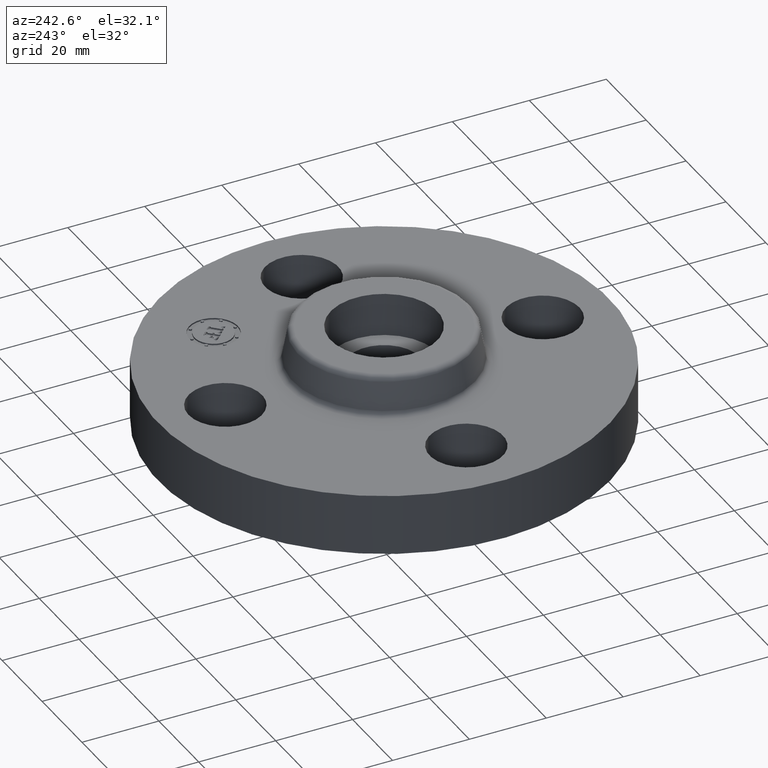
[diagram: clean part render]
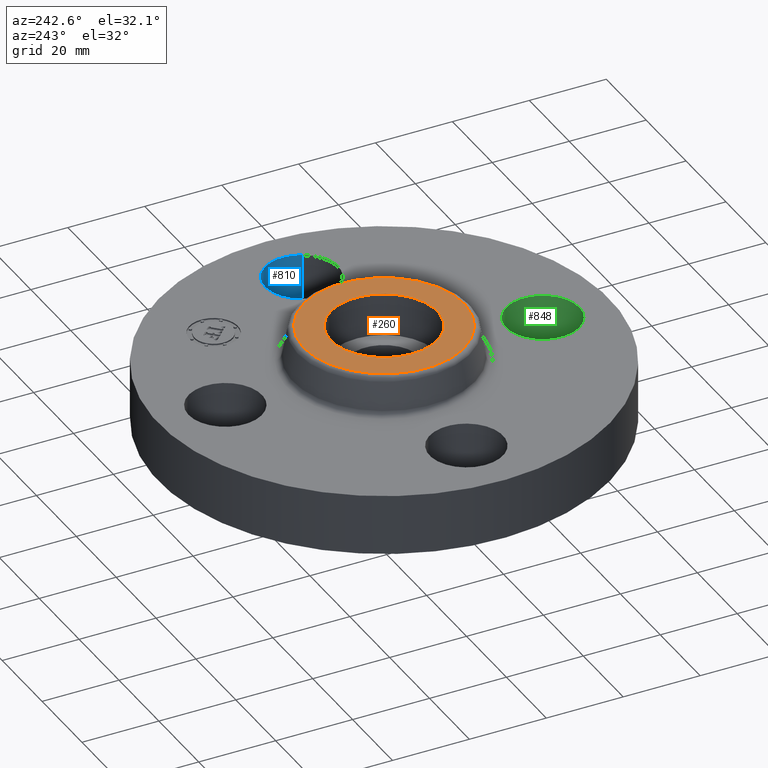
[diagram: same view with three faces highlighted in distinct colors, each labeled with its STEP entity id]
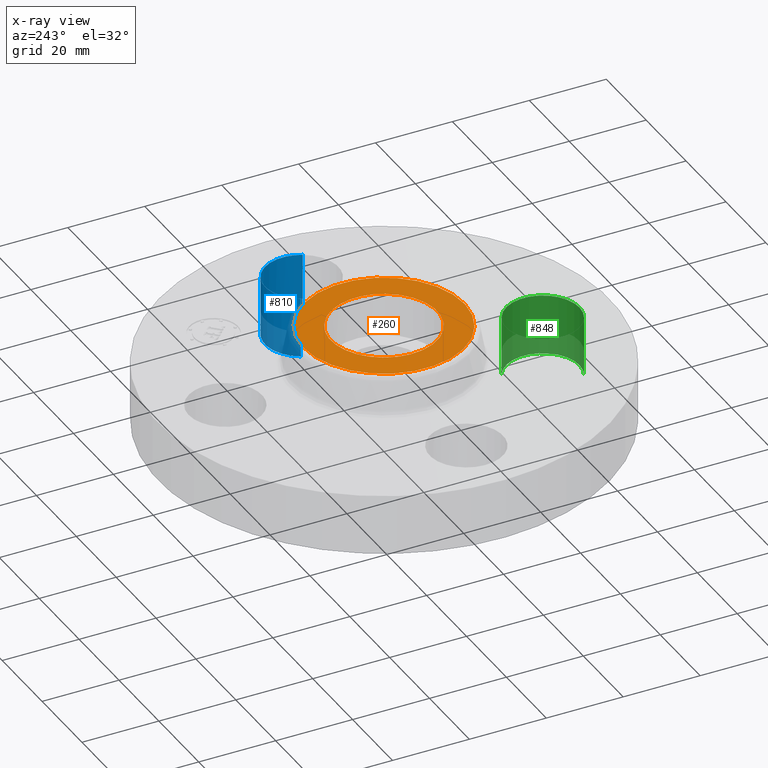
[diagram: x-ray of the same camera — body ghosted, the three highlighted faces saturated]
A machine part, auxiliary view with three faces highlighted in distinct colors.
The next image is the same camera in x-ray (body ghosted, the three faces saturated) — at least one of them is partly hidden behind the body in this view.
Their STEP definitions:

[orange] entity #260 — the highlighted planar face has unit normal (0, 0, -1).
#142=AXIS2_PLACEMENT_3D('Circle Axis2P3D',#140,#141,$) ;
#236=AXIS2_PLACEMENT_3D('Plane Axis2P3D',#233,#234,#235) ;
#240=AXIS2_PLACEMENT_3D('Circle Axis2P3D',#238,#239,$) ;
#249=AXIS2_PLACEMENT_3D('Circle Axis2P3D',#247,#248,$) ;
#91=CARTESIAN_POINT('Control Point',(-0.478282496232,0.26128691854,1.)) ;
#92=CARTESIAN_POINT('Control Point',(-0.437239643044,0.336415357366,0.999999999999)) ;
#93=CARTESIAN_POINT('Control Point',(-0.381445355387,0.403485050812,0.999999999999)) ;
#94=CARTESIAN_POINT('Control Point',(-0.312997615358,0.458621018005,0.999999999998)) ;
#95=CARTESIAN_POINT('Control Point',(-0.158171490313,0.539083781193,0.999999999997)) ;
#96=CARTESIAN_POINT('Control Point',(0.01558441809,0.555029612983,0.999999999996)) ;
#97=CARTESIAN_POINT('Control Point',(0.102971295511,0.54561676814,0.999999999996)) ;
#98=CARTESIAN_POINT('Control Point',(0.269345663919,0.4930339307,0.999999999995)) ;
#99=CARTESIAN_POINT('Control Point',(0.403485050812,0.381445355387,0.999999999994)) ;
#100=CARTESIAN_POINT('Control Point',(0.458621018005,0.312997615358,0.999999999993)) ;
#101=CARTESIAN_POINT('Control Point',(0.539083781193,0.158171490313,0.999999999992)) ;
#102=CARTESIAN_POINT('Control Point',(0.555029612983,-0.0155844180898,0.999999999991)) ;
#103=CARTESIAN_POINT('Control Point',(0.545616768141,-0.102971295511,0.99999999999)) ;
#104=CARTESIAN_POINT('Control Point',(0.51932534942,-0.186158479715,0.99999999999)) ;
#105=CARTESIAN_POINT('Control Point',(0.478282496232,-0.26128691854,0.999999999989)) ;
#106=CARTESIAN_POINT('Vertex',(-0.47828249626,0.261286918521,1.)) ;
#108=CARTESIAN_POINT('Vertex',(0.47828249626,-0.261286918521,1.)) ;
#140=CARTESIAN_POINT('Axis2P3D Location',(1.39870617276E-016,1.04902962957E-016,0.999999999989)) ;
#233=CARTESIAN_POINT('Axis2P3D Location',(0.,0.822649769463,1.)) ;
#238=CARTESIAN_POINT('Axis2P3D Location',(1.28117289306E-011,-6.99618840551E-012,1.)) ;
#242=CARTESIAN_POINT('Vertex',(0.394399308808,0.721943092224,1.)) ;
#244=CARTESIAN_POINT('Vertex',(-0.394399308808,-0.721943092224,1.)) ;
#247=CARTESIAN_POINT('Axis2P3D Location',(-1.28117289306E-011,7.00206297143E-012,1.)) ;
#141=DIRECTION('Axis2P3D Direction',(0.,0.,-0.0393700787402)) ;
#234=DIRECTION('Axis2P3D Direction',(0.,0.,-0.0393700787402)) ;
#235=DIRECTION('Axis2P3D XDirection',(0.0393700787402,0.,0.)) ;
#239=DIRECTION('Axis2P3D Direction',(0.,0.,-0.0393700787402)) ;
#248=DIRECTION('Axis2P3D Direction',(0.,0.,-0.0393700787402)) ;
#253=ORIENTED_EDGE('',*,*,#246,.F.) ;
#254=ORIENTED_EDGE('',*,*,#251,.F.) ;
#257=ORIENTED_EDGE('',*,*,#110,.T.) ;
#258=ORIENTED_EDGE('',*,*,#144,.T.) ;
#259=FACE_BOUND('',#256,.T.) ;
#260=ADVANCED_FACE('PartBody',(#255,#259),#237,.F.) ;
#90=B_SPLINE_CURVE_WITH_KNOTS('',5,(#91,#92,#93,#94,#95,#96,#97,#98,#99,#100,#101,#102,#103,#104,#105),.UNSPECIFIED.,.F.,.U.,(6,3,3,3,6),(-21.7445335519,-10.8722667759,-1.7763568394E-015,10.8722667759,21.7445335519),.UNSPECIFIED.) ;
#143=CIRCLE('generated circle',#142,0.545000000002) ;
#241=CIRCLE('generated circle',#240,0.82264976944) ;
#250=CIRCLE('generated circle',#249,0.82264976944) ;
#110=EDGE_CURVE('',#107,#109,#90,.T.) ;
#144=EDGE_CURVE('',#109,#107,#143,.T.) ;
#246=EDGE_CURVE('',#243,#245,#241,.T.) ;
#251=EDGE_CURVE('',#245,#243,#250,.T.) ;
#252=EDGE_LOOP('',(#253,#254)) ;
#256=EDGE_LOOP('',(#257,#258)) ;
#255=FACE_OUTER_BOUND('',#252,.T.) ;
#237=PLANE('',#236) ;
#107=VERTEX_POINT('',#106) ;
#109=VERTEX_POINT('',#108) ;
#243=VERTEX_POINT('',#242) ;
#245=VERTEX_POINT('',#244) ;

[blue] entity #810 — the highlighted cylindrical surface (partial cylindrical patch) has radius 9.525 mm, axis along (0, -0, -1).
#535=AXIS2_PLACEMENT_3D('Circle Axis2P3D',#533,#534,$) ;
#785=AXIS2_PLACEMENT_3D('Cylinder Axis2P3D',#782,#783,#784) ;
#528=CARTESIAN_POINT('Vertex',(1.95409346071,-0.179784576951,0.)) ;
#530=CARTESIAN_POINT('Vertex',(1.29590653932,0.179784576995,0.)) ;
#533=CARTESIAN_POINT('Axis2P3D Location',(1.62500000001,2.17732393794E-011,0.)) ;
#749=CARTESIAN_POINT('Line Origine',(1.95409346072,-0.179784576977,0.309999999994)) ;
#753=CARTESIAN_POINT('Vertex',(1.95409346071,-0.179784576986,0.620000000002)) ;
#756=CARTESIAN_POINT('Line Origine',(1.2959065393,0.179784576977,0.309999999994)) ;
#760=CARTESIAN_POINT('Vertex',(1.2959065393,0.179784576977,0.619999999987)) ;
#782=CARTESIAN_POINT('Axis2P3D Location',(1.62500000001,0.,0.616062992128)) ;
#788=CARTESIAN_POINT('Control Point',(1.2959065393,0.179784576977,0.620000000002)) ;
#789=CARTESIAN_POINT('Control Point',(1.32414703461,0.231478456903,0.620000000001)) ;
#790=CARTESIAN_POINT('Control Point',(1.36253759951,0.27762732854,0.620000000001)) ;
#791=CARTESIAN_POINT('Control Point',(1.40963466834,0.315564920645,0.62)) ;
#792=CARTESIAN_POINT('Control Point',(1.51616640576,0.370929207243,0.619999999998)) ;
#793=CARTESIAN_POINT('Control Point',(1.63572322347,0.38190110985,0.619999999997)) ;
#794=CARTESIAN_POINT('Control Point',(1.69585180885,0.375424381748,0.619999999996)) ;
#795=CARTESIAN_POINT('Control Point',(1.81032958528,0.339243530298,0.619999999995)) ;
#796=CARTESIAN_POINT('Control Point',(1.90262732855,0.262462400496,0.619999999993)) ;
#797=CARTESIAN_POINT('Control Point',(1.94056492066,0.215365331668,0.619999999992)) ;
#798=CARTESIAN_POINT('Control Point',(1.99592920725,0.108833594252,0.619999999991)) ;
#799=CARTESIAN_POINT('Control Point',(2.00690110986,-0.0107232234562,0.61999999999)) ;
#800=CARTESIAN_POINT('Control Point',(2.00042438176,-0.0708518088378,0.619999999989)) ;
#801=CARTESIAN_POINT('Control Point',(1.98233395603,-0.128090697051,0.619999999988)) ;
#802=CARTESIAN_POINT('Control Point',(1.95409346072,-0.179784576977,0.619999999987)) ;
#534=DIRECTION('Axis2P3D Direction',(0.,0.,-0.0393700787402)) ;
#750=DIRECTION('Vector Direction',(0.,0.,-0.0393700787402)) ;
#757=DIRECTION('Vector Direction',(0.,0.,-0.0393700787402)) ;
#783=DIRECTION('Axis2P3D Direction',(0.,-0.,-0.0393700787402)) ;
#784=DIRECTION('Axis2P3D XDirection',(-0.0345504945626,0.0188750212049,0.)) ;
#751=VECTOR('Line Direction',#750,0.0393700787402) ;
#758=VECTOR('Line Direction',#757,0.0393700787402) ;
#805=ORIENTED_EDGE('',*,*,#762,.F.) ;
#806=ORIENTED_EDGE('',*,*,#537,.T.) ;
#807=ORIENTED_EDGE('',*,*,#755,.T.) ;
#808=ORIENTED_EDGE('',*,*,#803,.F.) ;
#810=ADVANCED_FACE('PartBody',(#809),#786,.F.) ;
#787=B_SPLINE_CURVE_WITH_KNOTS('',5,(#788,#789,#790,#791,#792,#793,#794,#795,#796,#797,#798,#799,#800,#801,#802),.UNSPECIFIED.,.F.,.U.,(6,3,3,3,6),(-14.9618350128,-7.48091750638,0.,7.48091750638,14.9618350128),.UNSPECIFIED.) ;
#536=CIRCLE('generated circle',#535,0.374999999988) ;
#786=CYLINDRICAL_SURFACE('generated cylinder',#785,0.375000000001) ;
#537=EDGE_CURVE('',#531,#529,#536,.T.) ;
#755=EDGE_CURVE('',#529,#754,#752,.F.) ;
#762=EDGE_CURVE('',#531,#761,#759,.F.) ;
#803=EDGE_CURVE('',#761,#754,#787,.T.) ;
#804=EDGE_LOOP('',(#805,#806,#807,#808)) ;
#809=FACE_OUTER_BOUND('',#804,.T.) ;
#752=LINE('Line',#749,#751) ;
#759=LINE('Line',#756,#758) ;
#529=VERTEX_POINT('',#528) ;
#531=VERTEX_POINT('',#530) ;
#754=VERTEX_POINT('',#753) ;
#761=VERTEX_POINT('',#760) ;

[green] entity #848 — the highlighted cylindrical surface (partial cylindrical patch) has radius 9.525 mm, axis along (0, 0, -1).
#548=AXIS2_PLACEMENT_3D('Circle Axis2P3D',#546,#547,$) ;
#821=AXIS2_PLACEMENT_3D('Cylinder Axis2P3D',#818,#819,#820) ;
#839=AXIS2_PLACEMENT_3D('Circle Axis2P3D',#837,#838,$) ;
#546=CARTESIAN_POINT('Axis2P3D Location',(3.49676543189E-017,-1.62499999999,0.)) ;
#550=CARTESIAN_POINT('Vertex',(0.179784576973,-1.2959065393,0.)) ;
#552=CARTESIAN_POINT('Vertex',(-0.179784576973,-1.95409346069,0.)) ;
#818=CARTESIAN_POINT('Axis2P3D Location',(-1.8023868212E-016,-1.62500000001,0.616062992128)) ;
#823=CARTESIAN_POINT('Line Origine',(0.179784576977,-1.2959065393,0.309999999994)) ;
#827=CARTESIAN_POINT('Vertex',(0.179784576973,-1.29590653933,0.620000000002)) ;
#830=CARTESIAN_POINT('Line Origine',(-0.179784576977,-1.95409346072,0.309999999994)) ;
#834=CARTESIAN_POINT('Vertex',(-0.179784576977,-1.95409346072,0.619999999987)) ;
#837=CARTESIAN_POINT('Axis2P3D Location',(-1.8023868212E-016,-1.62500000001,0.619999999987)) ;
#547=DIRECTION('Axis2P3D Direction',(0.,0.,-0.0393700787402)) ;
#819=DIRECTION('Axis2P3D Direction',(0.,0.,-0.0393700787402)) ;
#820=DIRECTION('Axis2P3D XDirection',(0.0188750212049,0.0345504945626,0.)) ;
#824=DIRECTION('Vector Direction',(0.,0.,-0.0393700787402)) ;
#831=DIRECTION('Vector Direction',(0.,0.,-0.0393700787402)) ;
#838=DIRECTION('Axis2P3D Direction',(0.,0.,-0.0393700787402)) ;
#825=VECTOR('Line Direction',#824,0.0393700787402) ;
#832=VECTOR('Line Direction',#831,0.0393700787402) ;
#843=ORIENTED_EDGE('',*,*,#829,.F.) ;
#844=ORIENTED_EDGE('',*,*,#554,.T.) ;
#845=ORIENTED_EDGE('',*,*,#836,.T.) ;
#846=ORIENTED_EDGE('',*,*,#841,.F.) ;
#848=ADVANCED_FACE('PartBody',(#847),#822,.F.) ;
#549=CIRCLE('generated circle',#548,0.374999999988) ;
#840=CIRCLE('generated circle',#839,0.375000000001) ;
#822=CYLINDRICAL_SURFACE('generated cylinder',#821,0.375000000001) ;
#554=EDGE_CURVE('',#551,#553,#549,.T.) ;
#829=EDGE_CURVE('',#551,#828,#826,.F.) ;
#836=EDGE_CURVE('',#553,#835,#833,.F.) ;
#841=EDGE_CURVE('',#828,#835,#840,.T.) ;
#842=EDGE_LOOP('',(#843,#844,#845,#846)) ;
#847=FACE_OUTER_BOUND('',#842,.T.) ;
#826=LINE('Line',#823,#825) ;
#833=LINE('Line',#830,#832) ;
#551=VERTEX_POINT('',#550) ;
#553=VERTEX_POINT('',#552) ;
#828=VERTEX_POINT('',#827) ;
#835=VERTEX_POINT('',#834) ;